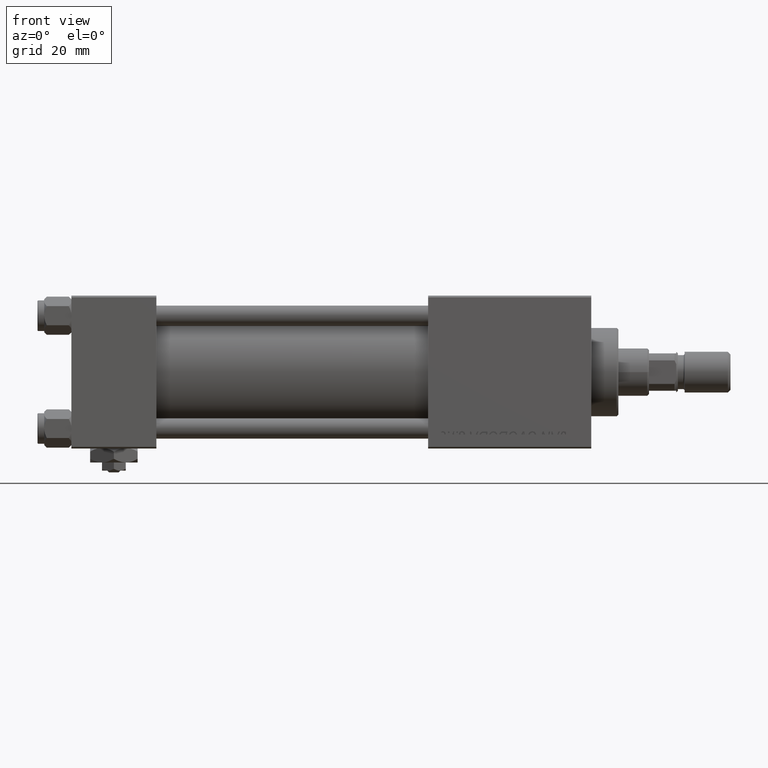
[diagram: clean part render]
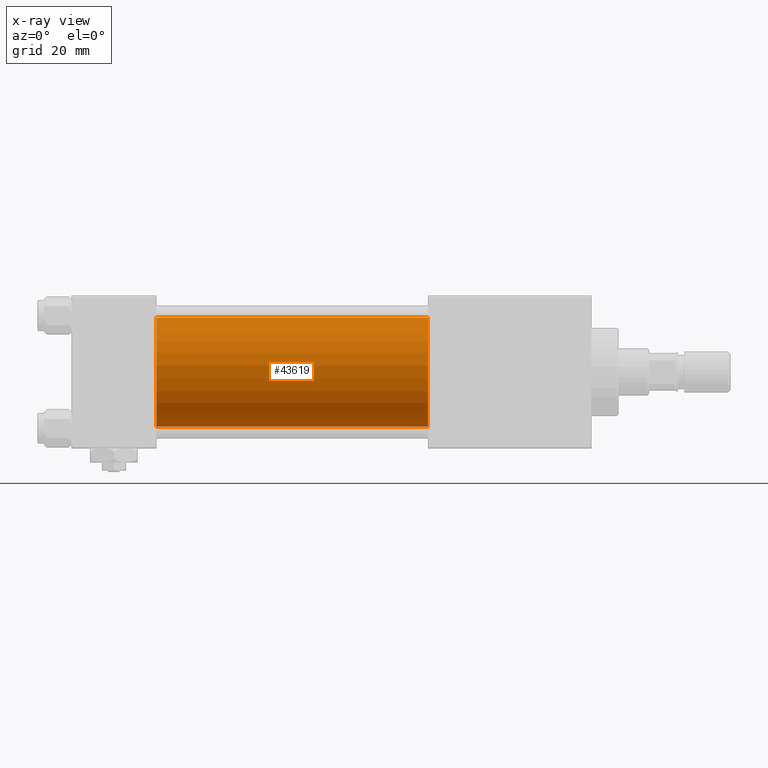
[diagram: x-ray — body ghosted, one internal face saturated and labeled with its STEP entity id]
A machine part, front view, then the same camera in x-ray: the body is ghosted and one INTERNAL B-rep face — a face not visible from any outside direction — is saturated and labeled: STEP entity #43619.
In plain terms, the highlighted cylindrical surface (partial cylindrical patch) has radius 16 mm, axis along (-1, -0, -0).
Its self-contained STEP definition (entity closure, byte-faithful):
#1757 = DIRECTION ( 'NONE',  ( 1.000000000000000000, 0.000000000000000000, 0.000000000000000000 ) ) ;
#2903 = DIRECTION ( 'NONE',  ( -1.000000000000000000, -0.000000000000000000, -0.000000000000000000 ) ) ;
#3181 = AXIS2_PLACEMENT_3D ( 'NONE', #38033, #1757, #9950 ) ;
#3851 = AXIS2_PLACEMENT_3D ( 'NONE', #11719, #51702, #31072 ) ;
#3968 = VERTEX_POINT ( 'NONE', #47101 ) ;
#5232 = EDGE_CURVE ( 'NONE', #29107, #24366, #26730, .T. ) ;
#6497 = FACE_OUTER_BOUND ( 'NONE', #30220, .T. ) ;
#6859 = LINE ( 'NONE', #23029, #11576 ) ;
#9950 = DIRECTION ( 'NONE',  ( 0.000000000000000000, 0.000000000000000000, -1.000000000000000000 ) ) ;
#11203 = CARTESIAN_POINT ( 'NONE',  ( 25.00000000000000000, -2.602085213965210642E-15, 16.00000000000000000 ) ) ;
#11437 = CIRCLE ( 'NONE', #3851, 16.00000000000000000 ) ;
#11576 = VECTOR ( 'NONE', #2903, 1000.000000000000000 ) ;
#11719 = CARTESIAN_POINT ( 'NONE',  ( 25.00000000000000000, -2.602085213965210642E-15, 0.000000000000000000 ) ) ;
#14621 = ORIENTED_EDGE ( 'NONE', *, *, #17807, .T. ) ;
#17807 = EDGE_CURVE ( 'NONE', #35113, #3968, #6859, .T. ) ;
#17888 = DIRECTION ( 'NONE',  ( -1.000000000000000000, -0.000000000000000000, -0.000000000000000000 ) ) ;
#19731 = EDGE_CURVE ( 'NONE', #29107, #35113, #37844, .T. ) ;
#22663 = DIRECTION ( 'NONE',  ( 0.000000000000000000, 0.000000000000000000, 1.000000000000000000 ) ) ;
#22838 = CARTESIAN_POINT ( 'NONE',  ( 105.0000000000000142, -2.602085213965210642E-15, 16.00000000000000000 ) ) ;
#22923 = CARTESIAN_POINT ( 'NONE',  ( 105.0000000000000142, -2.602085213965210642E-15, 0.000000000000000000 ) ) ;
#23029 = CARTESIAN_POINT ( 'NONE',  ( 105.0000000000000142, -6.426503353294456087E-16, -16.00000000000000000 ) ) ;
#23922 = ORIENTED_EDGE ( 'NONE', *, *, #19731, .T. ) ;
#24366 = VERTEX_POINT ( 'NONE', #11203 ) ;
#26730 = LINE ( 'NONE', #42876, #34080 ) ;
#26936 = ORIENTED_EDGE ( 'NONE', *, *, #36218, .F. ) ;
#29107 = VERTEX_POINT ( 'NONE', #22838 ) ;
#30220 = EDGE_LOOP ( 'NONE', ( #23922, #14621, #26936, #34259 ) ) ;
#31072 = DIRECTION ( 'NONE',  ( 0.000000000000000000, 0.000000000000000000, -1.000000000000000000 ) ) ;
#34080 = VECTOR ( 'NONE', #47102, 1000.000000000000000 ) ;
#34259 = ORIENTED_EDGE ( 'NONE', *, *, #5232, .F. ) ;
#35113 = VERTEX_POINT ( 'NONE', #45181 ) ;
#36218 = EDGE_CURVE ( 'NONE', #24366, #3968, #11437, .T. ) ;
#37844 = CIRCLE ( 'NONE', #3181, 16.00000000000000000 ) ;
#38033 = CARTESIAN_POINT ( 'NONE',  ( 105.0000000000000142, -2.602085213965210642E-15, 0.000000000000000000 ) ) ;
#42876 = CARTESIAN_POINT ( 'NONE',  ( 105.0000000000000142, -2.602085213965210642E-15, 16.00000000000000000 ) ) ;
#43619 = ADVANCED_FACE ( 'NONE', ( #6497 ), #47010, .F. ) ;
#45181 = CARTESIAN_POINT ( 'NONE',  ( 105.0000000000000142, -6.426503353294456087E-16, -16.00000000000000000 ) ) ;
#47010 = CYLINDRICAL_SURFACE ( 'NONE', #48062, 16.00000000000000000 ) ;
#47101 = CARTESIAN_POINT ( 'NONE',  ( 25.00000000000000000, -6.426503353294456087E-16, -16.00000000000000000 ) ) ;
#47102 = DIRECTION ( 'NONE',  ( -1.000000000000000000, -0.000000000000000000, -0.000000000000000000 ) ) ;
#48062 = AXIS2_PLACEMENT_3D ( 'NONE', #22923, #17888, #22663 ) ;
#51702 = DIRECTION ( 'NONE',  ( 1.000000000000000000, 0.000000000000000000, 0.000000000000000000 ) ) ;